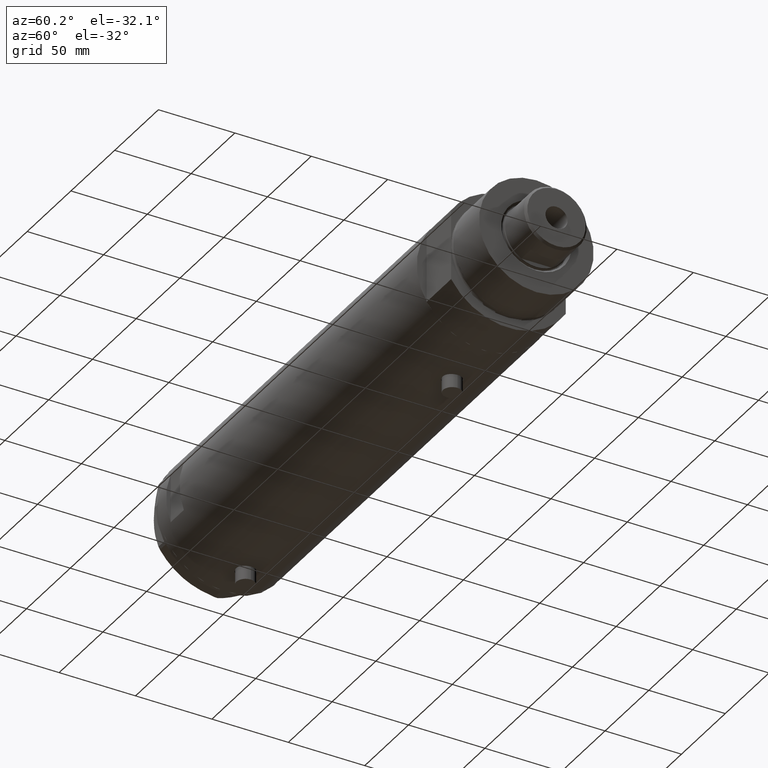
[diagram: clean part render]
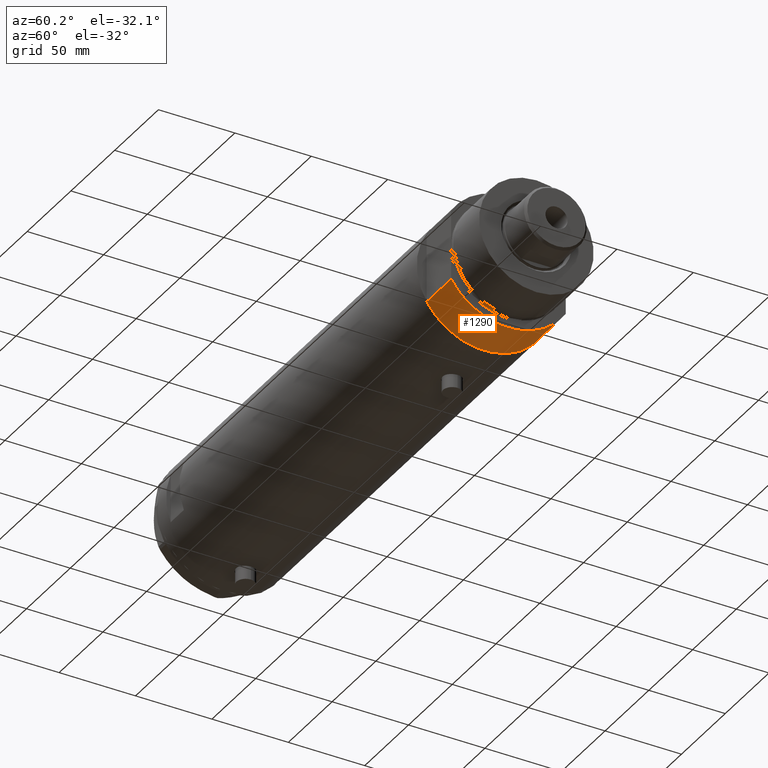
[diagram: same view with one face highlighted and labeled with its STEP entity id]
A machine part, auxiliary view. The second image highlights one B-rep face of the part: STEP entity #1290.
In plain terms, the highlighted cylindrical surface (partial cylindrical patch) has radius 44 mm, axis along (-1, -0, 0).
Its self-contained STEP definition (entity closure, byte-faithful):
#313 = EDGE_CURVE ( 'NONE', #3417, #3763, #563, .T. ) ;
#356 = CIRCLE ( 'NONE', #2941, 44.00000000000000000 ) ;
#400 = ORIENTED_EDGE ( 'NONE', *, *, #1526, .F. ) ;
#563 = LINE ( 'NONE', #885, #3925 ) ;
#615 = FACE_OUTER_BOUND ( 'NONE', #3829, .T. ) ;
#707 = CIRCLE ( 'NONE', #1464, 44.00000000000000000 ) ;
#885 = CARTESIAN_POINT ( 'NONE',  ( 23.01629857296780557, -37.50000000000000000, 0.000000000000000000 ) ) ;
#1047 = CARTESIAN_POINT ( 'NONE',  ( 0.000000000000000000, 0.000000000000000000, 27.89999999999999858 ) ) ;
#1277 = ORIENTED_EDGE ( 'NONE', *, *, #3353, .T. ) ;
#1290 = ADVANCED_FACE ( 'NONE', ( #615 ), #3760, .T. ) ;
#1305 = DIRECTION ( 'NONE',  ( 1.000000000000000000, 0.000000000000000000, 0.000000000000000000 ) ) ;
#1348 = CARTESIAN_POINT ( 'NONE',  ( 0.000000000000000000, 0.000000000000000000, 0.000000000000000000 ) ) ;
#1464 = AXIS2_PLACEMENT_3D ( 'NONE', #2698, #3679, #1305 ) ;
#1477 = DIRECTION ( 'NONE',  ( -0.000000000000000000, -0.000000000000000000, 1.000000000000000000 ) ) ;
#1526 = EDGE_CURVE ( 'NONE', #3763, #2140, #707, .T. ) ;
#1843 = ORIENTED_EDGE ( 'NONE', *, *, #3485, .T. ) ;
#1907 = LINE ( 'NONE', #3313, #3881 ) ;
#2024 = DIRECTION ( 'NONE',  ( -1.000000000000000000, 0.000000000000000000, 0.000000000000000000 ) ) ;
#2140 = VERTEX_POINT ( 'NONE', #3368 ) ;
#2270 = DIRECTION ( 'NONE',  ( -0.000000000000000000, -0.000000000000000000, 1.000000000000000000 ) ) ;
#2292 = DIRECTION ( 'NONE',  ( 0.000000000000000000, 0.000000000000000000, 1.000000000000000000 ) ) ;
#2432 = CARTESIAN_POINT ( 'NONE',  ( 23.01629857296780557, -37.50000000000000000, 27.89999999999999858 ) ) ;
#2603 = VERTEX_POINT ( 'NONE', #4408 ) ;
#2682 = ORIENTED_EDGE ( 'NONE', *, *, #313, .F. ) ;
#2698 = CARTESIAN_POINT ( 'NONE',  ( 0.000000000000000000, 0.000000000000000000, 27.89999999999999858 ) ) ;
#2724 = DIRECTION ( 'NONE',  ( 1.000000000000000000, 0.000000000000000000, 0.000000000000000000 ) ) ;
#2941 = AXIS2_PLACEMENT_3D ( 'NONE', #1348, #2292, #2724 ) ;
#3313 = CARTESIAN_POINT ( 'NONE',  ( 23.01629857296780557, 37.50000000000000000, 0.000000000000000000 ) ) ;
#3353 = EDGE_CURVE ( 'NONE', #3417, #2603, #356, .T. ) ;
#3368 = CARTESIAN_POINT ( 'NONE',  ( 23.01629857296780557, 37.50000000000000000, 27.89999999999999858 ) ) ;
#3417 = VERTEX_POINT ( 'NONE', #3896 ) ;
#3485 = EDGE_CURVE ( 'NONE', #2603, #2140, #1907, .T. ) ;
#3679 = DIRECTION ( 'NONE',  ( 0.000000000000000000, 0.000000000000000000, 1.000000000000000000 ) ) ;
#3760 = CYLINDRICAL_SURFACE ( 'NONE', #3934, 44.00000000000000000 ) ;
#3763 = VERTEX_POINT ( 'NONE', #2432 ) ;
#3801 = DIRECTION ( 'NONE',  ( -0.000000000000000000, -0.000000000000000000, -1.000000000000000000 ) ) ;
#3829 = EDGE_LOOP ( 'NONE', ( #400, #2682, #1277, #1843 ) ) ;
#3881 = VECTOR ( 'NONE', #1477, 1000.000000000000000 ) ;
#3896 = CARTESIAN_POINT ( 'NONE',  ( 23.01629857296780557, -37.50000000000000000, 0.000000000000000000 ) ) ;
#3925 = VECTOR ( 'NONE', #2270, 1000.000000000000000 ) ;
#3934 = AXIS2_PLACEMENT_3D ( 'NONE', #1047, #3801, #2024 ) ;
#4408 = CARTESIAN_POINT ( 'NONE',  ( 23.01629857296780557, 37.50000000000000000, 0.000000000000000000 ) ) ;